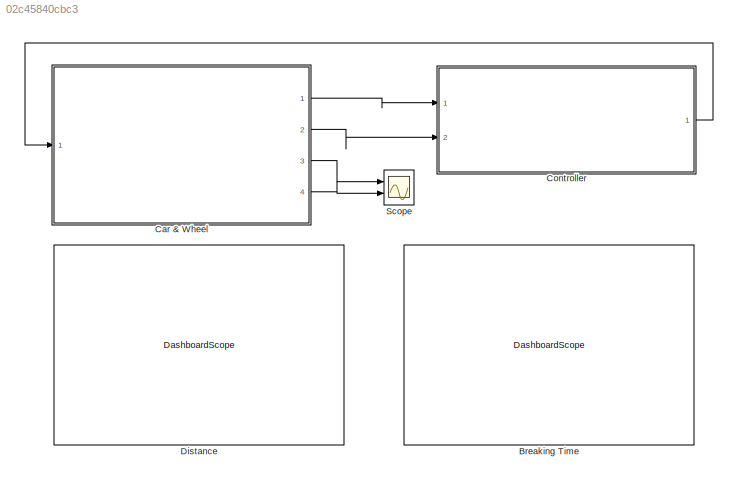
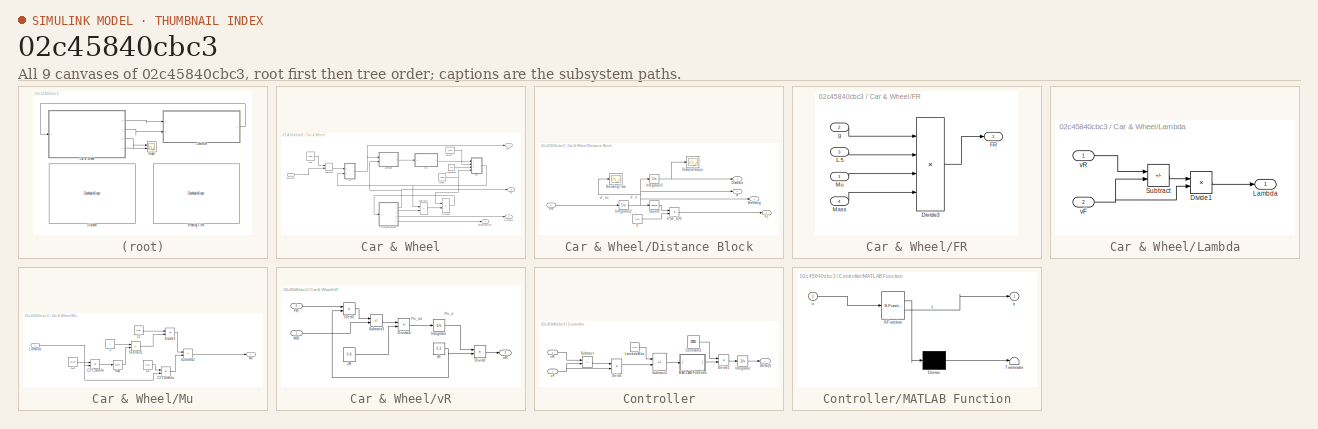
[diagram: thumbnail index - all 9 canvases of the model, root first then tree order]
MODEL slx_02c45840cbc3
KIND model
CONFIG AbsTol = auto
CONFIG EnableMultiTasking = off
CONFIG FixedStep = auto
CONFIG MaxStep = auto
CONFIG MinStep = auto
CONFIG RelTol = 1e-3
CONFIG SampleTimeConstraint = Unconstrained
CONFIG Solver = VariableStepAuto
CONFIG SolverName = VariableStepAuto
CONFIG StartTime = 0.0
CONFIG StopTime = 10
BLOCK [DashboardScope] Breaking Time
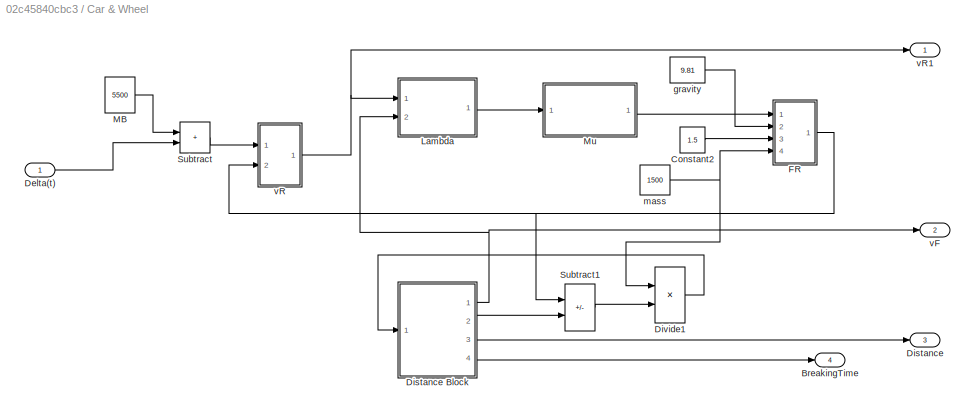
BLOCK [SubSystem] Car & Wheel
  Ports = [1, 4]
  RequestExecContextInheritance = off
BLOCK [Outport] Car & Wheel/BreakingTime
  Port = 4
BLOCK [Constant] Car & Wheel/Constant2
  Value = 1.5
BLOCK [Inport] Car & Wheel/Delta(t)
BLOCK [Outport] Car & Wheel/Distance
  Port = 3
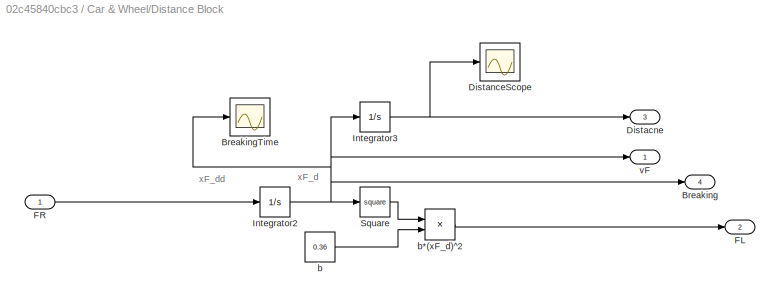
BLOCK [SubSystem] Car & Wheel/Distance Block
  Ports = [1, 4]
  RequestExecContextInheritance = off
BLOCK [Outport] Car & Wheel/Distance Block/Breaking
  Port = 4
BLOCK [Scope] Car & Wheel/Distance Block/BreakingTime
  Floating = off
  NumInputPorts = 1
  Ports = [1]
  ScopeSpecificationString = Simulink.scopes.TimeScopeBlockCfg('CurrentConfiguration', extmgr.ConfigurationSet(extmgr.Configuration('Core','General UI',true),extmgr.Configuration('Core','Source UI',true),extmgr.Configuration('Sources','WiredSimulink',true,'DataLoggingVariableName','ScopeData2'),extmgr.Configuration('Visuals','Time Domain',true,'SerializedDisplays',{struct('MinYLimReal','-5.11644','MaxYLimReal','46.04796','YLa...<+1418ch>
BLOCK [Outport] Car & Wheel/Distance Block/Distacne
  Port = 3
BLOCK [Scope] Car & Wheel/Distance Block/DistanceScope
  Floating = off
  NumInputPorts = 1
  Ports = [1]
  ScopeSpecificationString = Simulink.scopes.TimeScopeBlockCfg('CurrentConfiguration', extmgr.ConfigurationSet(extmgr.Configuration('Core','General UI',true),extmgr.Configuration('Core','Source UI',true),extmgr.Configuration('Sources','WiredSimulink',true),extmgr.Configuration('Visuals','Time Domain',true,'SerializedDisplays',{struct('MinYLimReal','-5.11644','MaxYLimReal','46.04796','YLabelReal','','MinYLimMag','0.00000','Max...<+1379ch>
BLOCK [Outport] Car & Wheel/Distance Block/FL
  Port = 2
BLOCK [Inport] Car & Wheel/Distance Block/FR
BLOCK [Integrator] Car & Wheel/Distance Block/Integrator2
  InitialCondition = 30
  LimitOutput = on
  LowerSaturationLimit = 0
  Ports = [1, 1]
BLOCK [Integrator] Car & Wheel/Distance Block/Integrator3
  Ports = [1, 1]
BLOCK [Math] Car & Wheel/Distance Block/Square
  Operator = square
  Ports = [1, 1]
BLOCK [Constant] Car & Wheel/Distance Block/b
  Value = 0.36
BLOCK [Product] Car & Wheel/Distance Block/b*(xF_d)^2
  Inputs = **
  Ports = [2, 1]
BLOCK [Outport] Car & Wheel/Distance Block/vF
BLOCK [Product] Car & Wheel/Divide1
  Inputs = /*
  Ports = [2, 1]
BLOCK [SubSystem] Car & Wheel/FR
  Ports = [4, 1]
  RequestExecContextInheritance = off
BLOCK [Inport] Car & Wheel/FR/1.5
  Port = 3
BLOCK [Product] Car & Wheel/FR/Divide3
  Inputs = ****
  Ports = [4, 1]
BLOCK [Outport] Car & Wheel/FR/FR
BLOCK [Inport] Car & Wheel/FR/Mass
  Port = 4
BLOCK [Inport] Car & Wheel/FR/Mu
BLOCK [Inport] Car & Wheel/FR/g
  Port = 2
BLOCK [SubSystem] Car & Wheel/Lambda
  Ports = [2, 1]
  RequestExecContextInheritance = off
BLOCK [Product] Car & Wheel/Lambda/Divide1
  Inputs = */
  Ports = [2, 1]
BLOCK [Outport] Car & Wheel/Lambda/Lambda
BLOCK [Sum] Car & Wheel/Lambda/Subtract
  IconShape = rectangular
  Inputs = -+
  Ports = [2, 1]
BLOCK [Inport] Car & Wheel/Lambda/vF
  Port = 2
BLOCK [Inport] Car & Wheel/Lambda/vR
BLOCK [Constant] Car & Wheel/MB
  Value = 5500
BLOCK [SubSystem] Car & Wheel/Mu
  Ports = [1, 1]
  RequestExecContextInheritance = off
BLOCK [Constant] Car & Wheel/Mu/-C2
  Value = -33.82
BLOCK [Product] Car & Wheel/Mu/-C2*Lmabda
  Inputs = **
  Ports = [2, 1]
BLOCK [Constant] Car & Wheel/Mu/1
BLOCK [Constant] Car & Wheel/Mu/C1
  Value = 0.86
BLOCK [Constant] Car & Wheel/Mu/C3
  Value = 0.35
BLOCK [Product] Car & Wheel/Mu/C3*Lambda
  Inputs = **
  Ports = [2, 1]
BLOCK [Product] Car & Wheel/Mu/Divide2
  Inputs = **
  Ports = [2, 1]
BLOCK [Math] Car & Wheel/Mu/Exp
  Ports = [1, 1]
BLOCK [Inport] Car & Wheel/Mu/Lambda
BLOCK [Outport] Car & Wheel/Mu/Mu
BLOCK [Sum] Car & Wheel/Mu/Subtract1
  IconShape = rectangular
  Inputs = +-
  Ports = [2, 1]
BLOCK [Sum] Car & Wheel/Mu/Subtract2
  IconShape = rectangular
  Inputs = +-
  Ports = [2, 1]
BLOCK [Sum] Car & Wheel/Subtract
  IconShape = rectangular
  Ports = [2, 1]
BLOCK [Sum] Car & Wheel/Subtract1
  IconShape = rectangular
  Inputs = --
  Ports = [2, 1]
BLOCK [Constant] Car & Wheel/gravity
  Value = 9.81
BLOCK [Constant] Car & Wheel/mass
  Value = 1500
BLOCK [Outport] Car & Wheel/vF
  Port = 2
BLOCK [SubSystem] Car & Wheel/vR
  Ports = [2, 1]
  RequestExecContextInheritance = off
BLOCK [Product] Car & Wheel/vR/Divide
  Inputs = **
  Ports = [2, 1]
BLOCK [Product] Car & Wheel/vR/Divide4
  Inputs = */
  Ports = [2, 1]
BLOCK [Inport] Car & Wheel/vR/FR
  Port = 2
BLOCK [Product] Car & Wheel/vR/FR*rR
  Inputs = **
  Ports = [2, 1]
BLOCK [Integrator] Car & Wheel/vR/Integrator
  InitialCondition = 30
  LimitOutput = on
  LowerSaturationLimit = 0
  Ports = [1, 1]
BLOCK [Constant] Car & Wheel/vR/JR
  Value = 0.8
BLOCK [Inport] Car & Wheel/vR/MB
BLOCK [Sum] Car & Wheel/vR/Subtract3
  IconShape = rectangular
  Inputs = +-
  Ports = [2, 1]
BLOCK [Constant] Car & Wheel/vR/rR
  Value = 0.3
BLOCK [Outport] Car & Wheel/vR/vR
BLOCK [Outport] Car & Wheel/vR1
BLOCK [SubSystem] Controller
  Ports = [2, 1]
  RequestExecContextInheritance = off
BLOCK [Constant] Controller/Constant1
  Value = 20000
BLOCK [Outport] Controller/Delta(t)
BLOCK [Product] Controller/Divide
  Inputs = */
  Ports = [2, 1]
BLOCK [Product] Controller/Divide1
  Inputs = **
  Ports = [2, 1]
BLOCK [Integrator] Controller/Integrator
  Ports = [1, 1]
BLOCK [Constant] Controller/LambdaMax
  Value = 0.13
BLOCK [SubSystem] Controller/MATLAB Function
  ErrorFcn = Stateflow.Translate.translate
  PermitHierarchicalResolution = ExplicitOnly
  Ports = [1, 1]
  RequestExecContextInheritance = off
  SFBlockType = MATLAB Function
  TreatAsAtomicUnit = on
BLOCK [Demux] Controller/MATLAB Function/ Demux 
  Outputs = 1
  Ports = [1, 1]
BLOCK [S-Function] Controller/MATLAB Function/ SFunction 
  EnableBusSupport = on
  FunctionName = sf_sfun
  PortCounts = [1 2]
  Ports = [1, 2]
  SFcnIsStateOwnerBlock = off
  SFunctionDeploymentMode = off
  Tag = Stateflow S-Function 2
BLOCK [Terminator] Controller/MATLAB Function/ Terminator 
BLOCK [Inport] Controller/MATLAB Function/u
BLOCK [Outport] Controller/MATLAB Function/y
BLOCK [Sum] Controller/Subtract
  IconShape = rectangular
  Inputs = -+
  Ports = [2, 1]
BLOCK [Sum] Controller/Subtract1
  IconShape = rectangular
  Inputs = +-
  Ports = [2, 1]
BLOCK [Inport] Controller/vF
  Port = 2
BLOCK [Inport] Controller/vR
BLOCK [DashboardScope] Distance
BLOCK [Scope] Scope
  Floating = off
  NumInputPorts = 2
  Ports = [2]
  ScopeSpecificationString = Simulink.scopes.TimeScopeBlockCfg('CurrentConfiguration', extmgr.ConfigurationSet(extmgr.Configuration('Core','General UI',true),extmgr.Configuration('Core','Source UI',true),extmgr.Configuration('Sources','WiredSimulink',true,'DataLoggingVariableName','ScopeData1'),extmgr.Configuration('Visuals','Time Domain',true,'SerializedDisplays',{struct('MinYLimReal','-5.09026','MaxYLimReal','45.81232','YLa...<+1392ch>
ANNOTATION Car & Wheel/Distance Block: xF_d
ANNOTATION Car & Wheel/Distance Block: xF_dd
ANNOTATION Car & Wheel/vR: Phi_d
ANNOTATION Car & Wheel/vR: Phi_dd
LINE Car & Wheel/Constant2:1 -> Car & Wheel/FR:3
LINE Car & Wheel/Delta(t):1 -> Car & Wheel/Subtract:2
LINE Car & Wheel/Distance Block/FR:1 -> Car & Wheel/Distance Block/Integrator2:1
NET Car & Wheel/Distance Block/Integrator2:1 -> Car & Wheel/Distance Block/Breaking:1, Car & Wheel/Distance Block/BreakingTime:1, Car & Wheel/Distance Block/Integrator3:1, Car & Wheel/Distance Block/Square:1, Car & Wheel/Distance Block/vF:1
NET Car & Wheel/Distance Block/Integrator3:1 -> Car & Wheel/Distance Block/Distacne:1, Car & Wheel/Distance Block/DistanceScope:1
LINE Car & Wheel/Distance Block/Square:1 -> Car & Wheel/Distance Block/b*(xF_d)^2:1
LINE Car & Wheel/Distance Block/b*(xF_d)^2:1 -> Car & Wheel/Distance Block/FL:1
LINE Car & Wheel/Distance Block/b:1 -> Car & Wheel/Distance Block/b*(xF_d)^2:2
NET Car & Wheel/Distance Block:1 -> Car & Wheel/Lambda:2, Car & Wheel/vF:1
LINE Car & Wheel/Distance Block:2 -> Car & Wheel/Subtract1:2
LINE Car & Wheel/Distance Block:3 -> Car & Wheel/Distance:1
LINE Car & Wheel/Distance Block:4 -> Car & Wheel/BreakingTime:1
LINE Car & Wheel/Divide1:1 -> Car & Wheel/Distance Block:1
LINE Car & Wheel/FR/1.5:1 -> Car & Wheel/FR/Divide3:2
LINE Car & Wheel/FR/Divide3:1 -> Car & Wheel/FR/FR:1
LINE Car & Wheel/FR/Mass:1 -> Car & Wheel/FR/Divide3:4
LINE Car & Wheel/FR/Mu:1 -> Car & Wheel/FR/Divide3:3
LINE Car & Wheel/FR/g:1 -> Car & Wheel/FR/Divide3:1
NET Car & Wheel/FR:1 -> Car & Wheel/Subtract1:1, Car & Wheel/vR:2
LINE Car & Wheel/Lambda/Divide1:1 -> Car & Wheel/Lambda/Lambda:1
LINE Car & Wheel/Lambda/Subtract:1 -> Car & Wheel/Lambda/Divide1:1
NET Car & Wheel/Lambda/vF:1 -> Car & Wheel/Lambda/Divide1:2, Car & Wheel/Lambda/Subtract:2
LINE Car & Wheel/Lambda/vR:1 -> Car & Wheel/Lambda/Subtract:1
LINE Car & Wheel/Lambda:1 -> Car & Wheel/Mu:1
LINE Car & Wheel/MB:1 -> Car & Wheel/Subtract:1
LINE Car & Wheel/Mu/-C2*Lmabda:1 -> Car & Wheel/Mu/Exp:1
LINE Car & Wheel/Mu/-C2:1 -> Car & Wheel/Mu/-C2*Lmabda:1
LINE Car & Wheel/Mu/1:1 -> Car & Wheel/Mu/Subtract1:1
LINE Car & Wheel/Mu/C1:1 -> Car & Wheel/Mu/Divide2:1
LINE Car & Wheel/Mu/C3*Lambda:1 -> Car & Wheel/Mu/Subtract2:2
LINE Car & Wheel/Mu/C3:1 -> Car & Wheel/Mu/C3*Lambda:1
LINE Car & Wheel/Mu/Divide2:1 -> Car & Wheel/Mu/Subtract2:1
LINE Car & Wheel/Mu/Exp:1 -> Car & Wheel/Mu/Subtract1:2
NET Car & Wheel/Mu/Lambda:1 -> Car & Wheel/Mu/-C2*Lmabda:2, Car & Wheel/Mu/C3*Lambda:2
LINE Car & Wheel/Mu/Subtract1:1 -> Car & Wheel/Mu/Divide2:2
LINE Car & Wheel/Mu/Subtract2:1 -> Car & Wheel/Mu/Mu:1
LINE Car & Wheel/Mu:1 -> Car & Wheel/FR:1
LINE Car & Wheel/Subtract1:1 -> Car & Wheel/Divide1:2
LINE Car & Wheel/Subtract:1 -> Car & Wheel/vR:1
LINE Car & Wheel/gravity:1 -> Car & Wheel/FR:2
NET Car & Wheel/mass:1 -> Car & Wheel/Divide1:1, Car & Wheel/FR:4
LINE Car & Wheel/vR/Divide4:1 -> Car & Wheel/vR/Integrator:1
LINE Car & Wheel/vR/Divide:1 -> Car & Wheel/vR/vR:1
LINE Car & Wheel/vR/FR*rR:1 -> Car & Wheel/vR/Subtract3:1
LINE Car & Wheel/vR/FR:1 -> Car & Wheel/vR/FR*rR:1
LINE Car & Wheel/vR/Integrator:1 -> Car & Wheel/vR/Divide:1
LINE Car & Wheel/vR/JR:1 -> Car & Wheel/vR/Divide4:2
LINE Car & Wheel/vR/MB:1 -> Car & Wheel/vR/Subtract3:2
LINE Car & Wheel/vR/Subtract3:1 -> Car & Wheel/vR/Divide4:1
NET Car & Wheel/vR/rR:1 -> Car & Wheel/vR/Divide:2, Car & Wheel/vR/FR*rR:2
NET Car & Wheel/vR:1 -> Car & Wheel/Lambda:1, Car & Wheel/vR1:1
LINE Car & Wheel:1 -> Controller:1
LINE Car & Wheel:2 -> Controller:2
LINE Car & Wheel:3 -> Scope:1
LINE Car & Wheel:4 -> Scope:2
LINE Controller/Constant1:1 -> Controller/Divide1:1
LINE Controller/Divide1:1 -> Controller/Integrator:1
LINE Controller/Divide:1 -> Controller/Subtract1:2
LINE Controller/Integrator:1 -> Controller/Delta(t):1
LINE Controller/LambdaMax:1 -> Controller/Subtract1:1
LINE Controller/MATLAB Function:1 -> Controller/Divide1:2
LINE Controller/Subtract1:1 -> Controller/MATLAB Function:1
LINE Controller/Subtract:1 -> Controller/Divide:1
NET Controller/vF:1 -> Controller/Divide:2, Controller/Subtract:2
LINE Controller/vR:1 -> Controller/Subtract:1
LINE Controller:1 -> Car & Wheel:1
note: NET lines group one-source signal fan-out (src -> all destinations, sorted); 1:1 wires keep LINE
CHART Controller/MATLAB Function states=1 transitions=1
  STATE_LABEL 'eML_blk_kernel()'
  STATE_LABEL 'SCRIPT:\nfunction y = fcn(u)\nif u>0\n    y=1;\nelseif u==0\n    y = 0;\nelse\n    y=-1;\nend\n'
CHART  states=0 transitions=0
